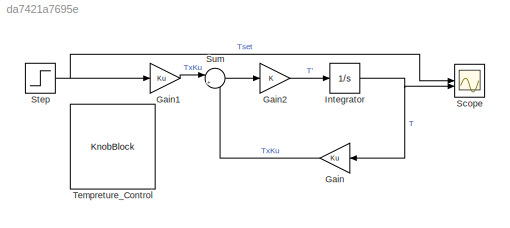
MODEL slx_da7421a7695e
KIND model
CONFIG AbsTol = auto
CONFIG EnableMultiTasking = off
CONFIG FixedStep = 1e-3
CONFIG MaxStep = auto
CONFIG MinStep = auto
CONFIG RelTol = 1e-3
CONFIG SampleTimeConstraint = Unconstrained
CONFIG SolverName = FixedStepAuto
CONFIG StartTime = 0.0
CONFIG StopTime = 20
BLOCK [Gain] Gain
  Gain = Ku
  NameLocation = top
BLOCK [Gain] Gain1
  Gain = Ku
BLOCK [Gain] Gain2
BLOCK [Integrator] Integrator
  InitialCondition = 1
BLOCK [Scope] Scope
  Floating = off
  NumInputPorts = 2
  ScopeSpecificationString = Simulink.scopes.TimeScopeBlockCfg('CurrentConfiguration', extmgr.ConfigurationSet(extmgr.Configuration('Core','General UI',true,'FigureColor',[1 1 1]),extmgr.Configuration('Core','Source UI',true),extmgr.Configuration('Sources','WiredSimulink',true),extmgr.Configuration('Visuals','Time Domain',true,'SerializedDisplays',{struct('MinYLimReal','-4.32334','MaxYLimReal','38.91007','YLabelReal','','MinY...<+2239ch>
BLOCK [Step] Step
  After = Tset
  SampleTime = 0
BLOCK [Sum] Sum
  Inputs = |+-
BLOCK [KnobBlock] Tempreture_Control
  ScaleMax = 50
LINE Gain1:1 -> Sum:1
LINE Gain2:1 -> Integrator:1
LINE Gain:1 -> Sum:2
NET Integrator:1 -> Gain:1, Scope:2
NET Step:1 -> Gain1:1, Scope:1
LINE Sum:1 -> Gain2:1
note: NET lines group one-source signal fan-out (src -> all destinations, sorted); 1:1 wires keep LINE
